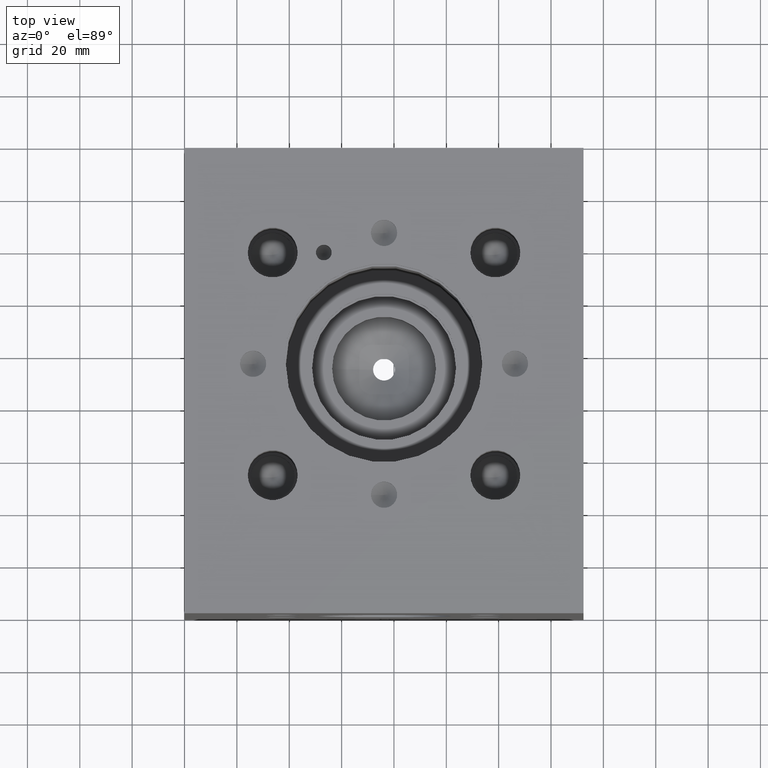
[diagram: clean part render]
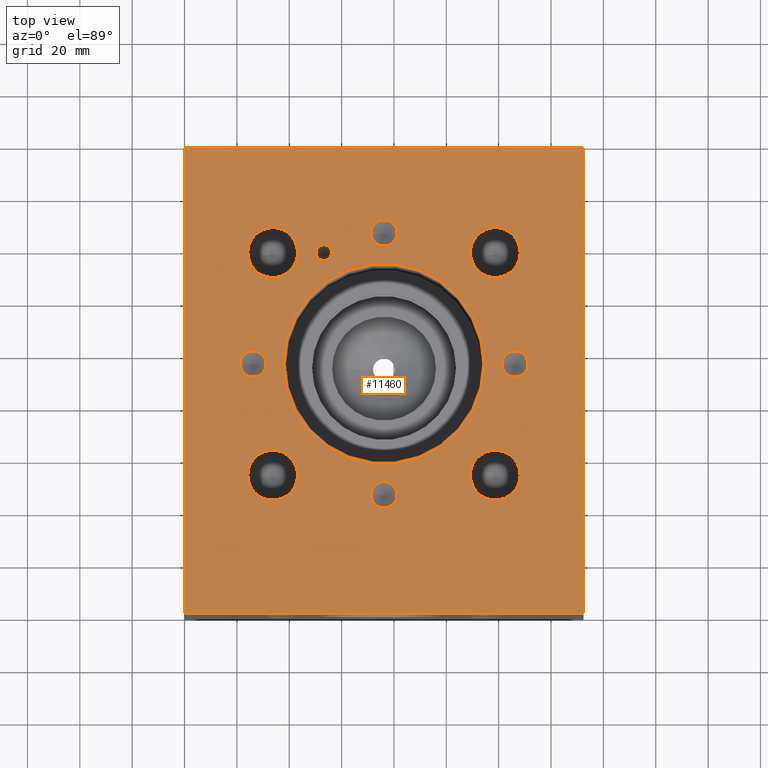
[diagram: same view with one face highlighted and labeled with its STEP entity id]
A machine part, top view. The second image highlights one B-rep face of the part: STEP entity #11460.
In plain terms, the highlighted planar face has unit normal (0, 0, 1).
Its self-contained STEP definition (entity closure, byte-faithful):
#349=CIRCLE('',#12137,2.9972);
#350=CIRCLE('',#12138,2.9972);
#353=CIRCLE('',#12143,5.0038);
#354=CIRCLE('',#12144,5.0038);
#357=CIRCLE('',#12149,5.0038);
#358=CIRCLE('',#12150,5.0038);
#361=CIRCLE('',#12155,5.0038);
#362=CIRCLE('',#12156,5.0038);
#365=CIRCLE('',#12161,5.0038);
#366=CIRCLE('',#12162,5.0038);
#372=CIRCLE('',#12171,9.525);
#373=CIRCLE('',#12172,9.525);
#379=CIRCLE('',#12182,9.525);
#380=CIRCLE('',#12183,9.525);
#386=CIRCLE('',#12193,9.525);
#387=CIRCLE('',#12194,9.525);
#393=CIRCLE('',#12204,9.525);
#394=CIRCLE('',#12205,9.525);
#395=CIRCLE('',#12208,38.3159);
#396=CIRCLE('',#12209,38.3159);
#507=FACE_BOUND('',#2065,.T.);
#508=FACE_BOUND('',#2066,.T.);
#509=FACE_BOUND('',#2067,.T.);
#510=FACE_BOUND('',#2068,.T.);
#511=FACE_BOUND('',#2069,.T.);
#512=FACE_BOUND('',#2070,.T.);
#513=FACE_BOUND('',#2071,.T.);
#514=FACE_BOUND('',#2072,.T.);
#515=FACE_BOUND('',#2073,.T.);
#516=FACE_BOUND('',#2074,.T.);
#1388=FACE_OUTER_BOUND('',#2064,.T.);
#2064=EDGE_LOOP('',(#10071,#10072,#10073,#10074));
#2065=EDGE_LOOP('',(#10075,#10076));
#2066=EDGE_LOOP('',(#10077,#10078));
#2067=EDGE_LOOP('',(#10079,#10080));
#2068=EDGE_LOOP('',(#10081,#10082));
#2069=EDGE_LOOP('',(#10083,#10084));
#2070=EDGE_LOOP('',(#10085,#10086));
#2071=EDGE_LOOP('',(#10087,#10088));
#2072=EDGE_LOOP('',(#10089,#10090));
#2073=EDGE_LOOP('',(#10091,#10092));
#2074=EDGE_LOOP('',(#10093,#10094));
#2410=LINE('',#16617,#3513);
#2918=LINE('',#18131,#4021);
#3176=LINE('',#19407,#4279);
#3178=LINE('',#19410,#4281);
#3513=VECTOR('',#12779,10.);
#4021=VECTOR('',#13661,10.);
#4279=VECTOR('',#14871,10.);
#4281=VECTOR('',#14875,10.);
#4588=VERTEX_POINT('',#16614);
#4589=VERTEX_POINT('',#16616);
#5008=VERTEX_POINT('',#18129);
#5298=VERTEX_POINT('',#19203);
#5299=VERTEX_POINT('',#19204);
#5303=VERTEX_POINT('',#19216);
#5304=VERTEX_POINT('',#19217);
#5308=VERTEX_POINT('',#19229);
#5309=VERTEX_POINT('',#19230);
#5313=VERTEX_POINT('',#19242);
#5314=VERTEX_POINT('',#19243);
#5318=VERTEX_POINT('',#19255);
#5319=VERTEX_POINT('',#19256);
#5326=VERTEX_POINT('',#19275);
#5327=VERTEX_POINT('',#19276);
#5334=VERTEX_POINT('',#19297);
#5335=VERTEX_POINT('',#19298);
#5342=VERTEX_POINT('',#19319);
#5343=VERTEX_POINT('',#19320);
#5350=VERTEX_POINT('',#19341);
#5351=VERTEX_POINT('',#19342);
#5352=VERTEX_POINT('',#19349);
#5353=VERTEX_POINT('',#19350);
#5372=VERTEX_POINT('',#19406);
#5831=EDGE_CURVE('',#4589,#4588,#2410,.T.);
#6419=EDGE_CURVE('',#4588,#5008,#2918,.T.);
#6852=EDGE_CURVE('',#5298,#5299,#349,.T.);
#6853=EDGE_CURVE('',#5299,#5298,#350,.T.);
#6858=EDGE_CURVE('',#5303,#5304,#353,.T.);
#6859=EDGE_CURVE('',#5304,#5303,#354,.T.);
#6864=EDGE_CURVE('',#5308,#5309,#357,.T.);
#6865=EDGE_CURVE('',#5309,#5308,#358,.T.);
#6870=EDGE_CURVE('',#5313,#5314,#361,.T.);
#6871=EDGE_CURVE('',#5314,#5313,#362,.T.);
#6876=EDGE_CURVE('',#5318,#5319,#365,.T.);
#6877=EDGE_CURVE('',#5319,#5318,#366,.T.);
#6885=EDGE_CURVE('',#5326,#5327,#372,.T.);
#6886=EDGE_CURVE('',#5327,#5326,#373,.T.);
#6895=EDGE_CURVE('',#5334,#5335,#379,.T.);
#6896=EDGE_CURVE('',#5335,#5334,#380,.T.);
#6905=EDGE_CURVE('',#5342,#5343,#386,.T.);
#6906=EDGE_CURVE('',#5343,#5342,#387,.T.);
#6915=EDGE_CURVE('',#5350,#5351,#393,.T.);
#6916=EDGE_CURVE('',#5351,#5350,#394,.T.);
#6919=EDGE_CURVE('',#5352,#5353,#395,.T.);
#6920=EDGE_CURVE('',#5353,#5352,#396,.T.);
#6945=EDGE_CURVE('',#5372,#4589,#3176,.T.);
#6947=EDGE_CURVE('',#5008,#5372,#3178,.T.);
#10071=ORIENTED_EDGE('',*,*,#6419,.T.);
#10072=ORIENTED_EDGE('',*,*,#6947,.T.);
#10073=ORIENTED_EDGE('',*,*,#6945,.T.);
#10074=ORIENTED_EDGE('',*,*,#5831,.T.);
#10075=ORIENTED_EDGE('',*,*,#6852,.T.);
#10076=ORIENTED_EDGE('',*,*,#6853,.T.);
#10077=ORIENTED_EDGE('',*,*,#6858,.T.);
#10078=ORIENTED_EDGE('',*,*,#6859,.T.);
#10079=ORIENTED_EDGE('',*,*,#6864,.T.);
#10080=ORIENTED_EDGE('',*,*,#6865,.T.);
#10081=ORIENTED_EDGE('',*,*,#6870,.T.);
#10082=ORIENTED_EDGE('',*,*,#6871,.T.);
#10083=ORIENTED_EDGE('',*,*,#6876,.T.);
#10084=ORIENTED_EDGE('',*,*,#6877,.T.);
#10085=ORIENTED_EDGE('',*,*,#6885,.T.);
#10086=ORIENTED_EDGE('',*,*,#6886,.T.);
#10087=ORIENTED_EDGE('',*,*,#6895,.T.);
#10088=ORIENTED_EDGE('',*,*,#6896,.T.);
#10089=ORIENTED_EDGE('',*,*,#6905,.T.);
#10090=ORIENTED_EDGE('',*,*,#6906,.T.);
#10091=ORIENTED_EDGE('',*,*,#6915,.T.);
#10092=ORIENTED_EDGE('',*,*,#6916,.T.);
#10093=ORIENTED_EDGE('',*,*,#6919,.T.);
#10094=ORIENTED_EDGE('',*,*,#6920,.T.);
#10462=PLANE('',#12241);
#11460=ADVANCED_FACE('',(#1388,#507,#508,#509,#510,#511,#512,#513,#514,
#515,#516),#10462,.T.);
#12137=AXIS2_PLACEMENT_3D('',#19205,#14640,#14641);
#12138=AXIS2_PLACEMENT_3D('',#19206,#14642,#14643);
#12143=AXIS2_PLACEMENT_3D('',#19218,#14654,#14655);
#12144=AXIS2_PLACEMENT_3D('',#19219,#14656,#14657);
#12149=AXIS2_PLACEMENT_3D('',#19231,#14668,#14669);
#12150=AXIS2_PLACEMENT_3D('',#19232,#14670,#14671);
#12155=AXIS2_PLACEMENT_3D('',#19244,#14682,#14683);
#12156=AXIS2_PLACEMENT_3D('',#19245,#14684,#14685);
#12161=AXIS2_PLACEMENT_3D('',#19257,#14696,#14697);
#12162=AXIS2_PLACEMENT_3D('',#19258,#14698,#14699);
#12171=AXIS2_PLACEMENT_3D('',#19277,#14718,#14719);
#12172=AXIS2_PLACEMENT_3D('',#19278,#14720,#14721);
#12182=AXIS2_PLACEMENT_3D('',#19299,#14743,#14744);
#12183=AXIS2_PLACEMENT_3D('',#19300,#14745,#14746);
#12193=AXIS2_PLACEMENT_3D('',#19321,#14768,#14769);
#12194=AXIS2_PLACEMENT_3D('',#19322,#14770,#14771);
#12204=AXIS2_PLACEMENT_3D('',#19343,#14793,#14794);
#12205=AXIS2_PLACEMENT_3D('',#19344,#14795,#14796);
#12208=AXIS2_PLACEMENT_3D('',#19351,#14803,#14804);
#12209=AXIS2_PLACEMENT_3D('',#19352,#14805,#14806);
#12241=AXIS2_PLACEMENT_3D('',#19412,#14878,#14879);
#12779=DIRECTION('',(0.,-1.,0.));
#13661=DIRECTION('',(1.,0.,0.));
#14640=DIRECTION('center_axis',(0.,0.,-1.));
#14641=DIRECTION('ref_axis',(1.,0.,0.));
#14642=DIRECTION('center_axis',(0.,0.,-1.));
#14643=DIRECTION('ref_axis',(1.,0.,0.));
#14654=DIRECTION('center_axis',(0.,0.,-1.));
#14655=DIRECTION('ref_axis',(1.,0.,0.));
#14656=DIRECTION('center_axis',(0.,0.,-1.));
#14657=DIRECTION('ref_axis',(1.,0.,0.));
#14668=DIRECTION('center_axis',(0.,0.,-1.));
#14669=DIRECTION('ref_axis',(1.,0.,0.));
#14670=DIRECTION('center_axis',(0.,0.,-1.));
#14671=DIRECTION('ref_axis',(1.,0.,0.));
#14682=DIRECTION('center_axis',(0.,0.,-1.));
#14683=DIRECTION('ref_axis',(1.,0.,0.));
#14684=DIRECTION('center_axis',(0.,0.,-1.));
#14685=DIRECTION('ref_axis',(1.,0.,0.));
#14696=DIRECTION('center_axis',(0.,0.,-1.));
#14697=DIRECTION('ref_axis',(1.,0.,0.));
#14698=DIRECTION('center_axis',(0.,0.,-1.));
#14699=DIRECTION('ref_axis',(1.,0.,0.));
#14718=DIRECTION('center_axis',(0.,0.,-1.));
#14719=DIRECTION('ref_axis',(1.,0.,0.));
#14720=DIRECTION('center_axis',(0.,0.,-1.));
#14721=DIRECTION('ref_axis',(1.,0.,0.));
#14743=DIRECTION('center_axis',(0.,0.,-1.));
#14744=DIRECTION('ref_axis',(1.,0.,0.));
#14745=DIRECTION('center_axis',(0.,0.,-1.));
#14746=DIRECTION('ref_axis',(1.,0.,0.));
#14768=DIRECTION('center_axis',(0.,0.,-1.));
#14769=DIRECTION('ref_axis',(1.,0.,0.));
#14770=DIRECTION('center_axis',(0.,0.,-1.));
#14771=DIRECTION('ref_axis',(1.,0.,0.));
#14793=DIRECTION('center_axis',(0.,0.,-1.));
#14794=DIRECTION('ref_axis',(1.,0.,0.));
#14795=DIRECTION('center_axis',(0.,0.,-1.));
#14796=DIRECTION('ref_axis',(1.,0.,0.));
#14803=DIRECTION('center_axis',(0.,0.,-1.));
#14804=DIRECTION('ref_axis',(1.,0.,0.));
#14805=DIRECTION('center_axis',(0.,0.,-1.));
#14806=DIRECTION('ref_axis',(1.,0.,0.));
#14871=DIRECTION('',(-1.,0.,0.));
#14875=DIRECTION('',(0.,1.,0.));
#14878=DIRECTION('center_axis',(0.,0.,1.));
#14879=DIRECTION('ref_axis',(1.,0.,0.));
#16614=CARTESIAN_POINT('',(0.,0.,152.4));
#16616=CARTESIAN_POINT('',(0.,177.8,152.4));
#16617=CARTESIAN_POINT('',(0.,177.8,152.4));
#18129=CARTESIAN_POINT('',(152.4,0.,152.4));
#18131=CARTESIAN_POINT('',(0.,0.,152.4));
#19203=CARTESIAN_POINT('',(56.1848,137.7696,152.4));
#19204=CARTESIAN_POINT('',(50.1904,137.7696,152.4));
#19205=CARTESIAN_POINT('Origin',(53.1876,137.7696,152.4));
#19206=CARTESIAN_POINT('Origin',(53.1876,137.7696,152.4));
#19216=CARTESIAN_POINT('',(31.1912,95.25,152.4));
#19217=CARTESIAN_POINT('',(21.1836,95.25,152.4));
#19218=CARTESIAN_POINT('Origin',(26.1874,95.25,152.4));
#19219=CARTESIAN_POINT('Origin',(26.1874,95.25,152.4));
#19229=CARTESIAN_POINT('',(81.2038,45.2374,152.4));
#19230=CARTESIAN_POINT('',(71.1962,45.2374,152.4));
#19231=CARTESIAN_POINT('Origin',(76.2,45.2374,152.4));
#19232=CARTESIAN_POINT('Origin',(76.2,45.2374,152.4));
#19242=CARTESIAN_POINT('',(131.2164,95.25,152.4));
#19243=CARTESIAN_POINT('',(121.2088,95.25,152.4));
#19244=CARTESIAN_POINT('Origin',(126.2126,95.25,152.4));
#19245=CARTESIAN_POINT('Origin',(126.2126,95.25,152.4));
#19255=CARTESIAN_POINT('',(81.2038,145.2626,152.4));
#19256=CARTESIAN_POINT('',(71.1962,145.2626,152.4));
#19257=CARTESIAN_POINT('Origin',(76.2,145.2626,152.4));
#19258=CARTESIAN_POINT('Origin',(76.2,145.2626,152.4));
#19275=CARTESIAN_POINT('',(43.2054,137.7696,152.4));
#19276=CARTESIAN_POINT('',(24.1554,137.7696,152.4));
#19277=CARTESIAN_POINT('Origin',(33.6804,137.7696,152.4));
#19278=CARTESIAN_POINT('Origin',(33.6804,137.7696,152.4));
#19297=CARTESIAN_POINT('',(128.2192,52.7558,152.4));
#19298=CARTESIAN_POINT('',(109.1692,52.7558,152.4));
#19299=CARTESIAN_POINT('Origin',(118.6942,52.7558,152.4));
#19300=CARTESIAN_POINT('Origin',(118.6942,52.7558,152.4));
#19319=CARTESIAN_POINT('',(43.2054,52.7304,152.4));
#19320=CARTESIAN_POINT('',(24.1554,52.7304,152.4));
#19321=CARTESIAN_POINT('Origin',(33.6804,52.7304,152.4));
#19322=CARTESIAN_POINT('Origin',(33.6804,52.7304,152.4));
#19341=CARTESIAN_POINT('',(128.2446,137.7696,152.4));
#19342=CARTESIAN_POINT('',(109.1946,137.7696,152.4));
#19343=CARTESIAN_POINT('Origin',(118.7196,137.7696,152.4));
#19344=CARTESIAN_POINT('Origin',(118.7196,137.7696,152.4));
#19349=CARTESIAN_POINT('',(114.5159,95.25,152.4));
#19350=CARTESIAN_POINT('',(37.8841,95.25,152.4));
#19351=CARTESIAN_POINT('Origin',(76.2,95.25,152.4));
#19352=CARTESIAN_POINT('Origin',(76.2,95.25,152.4));
#19406=CARTESIAN_POINT('',(152.4,177.8,152.4));
#19407=CARTESIAN_POINT('',(152.4,177.8,152.4));
#19410=CARTESIAN_POINT('',(152.4,0.,152.4));
#19412=CARTESIAN_POINT('Origin',(76.2,88.9,152.4));